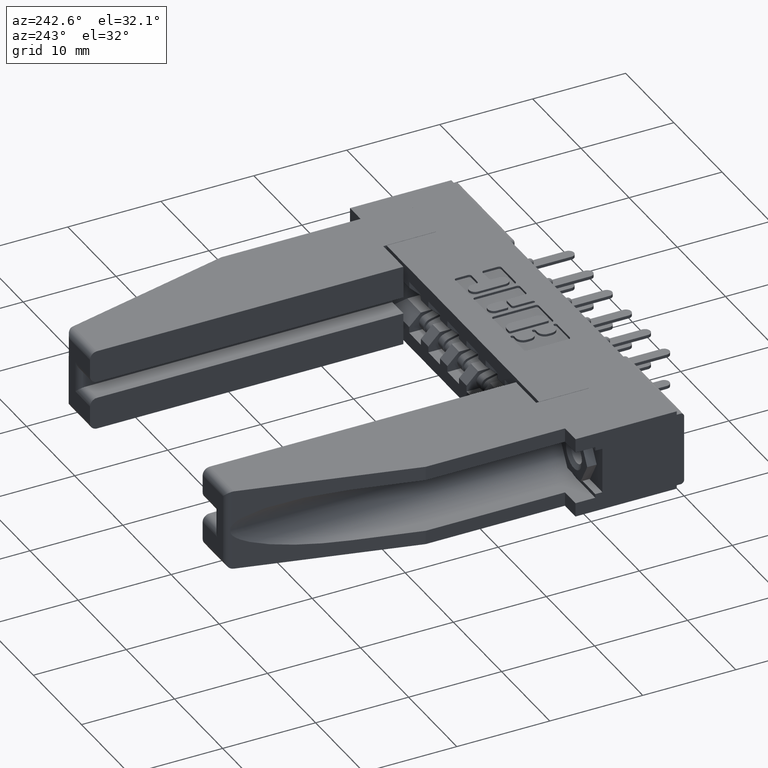
[diagram: clean part render]
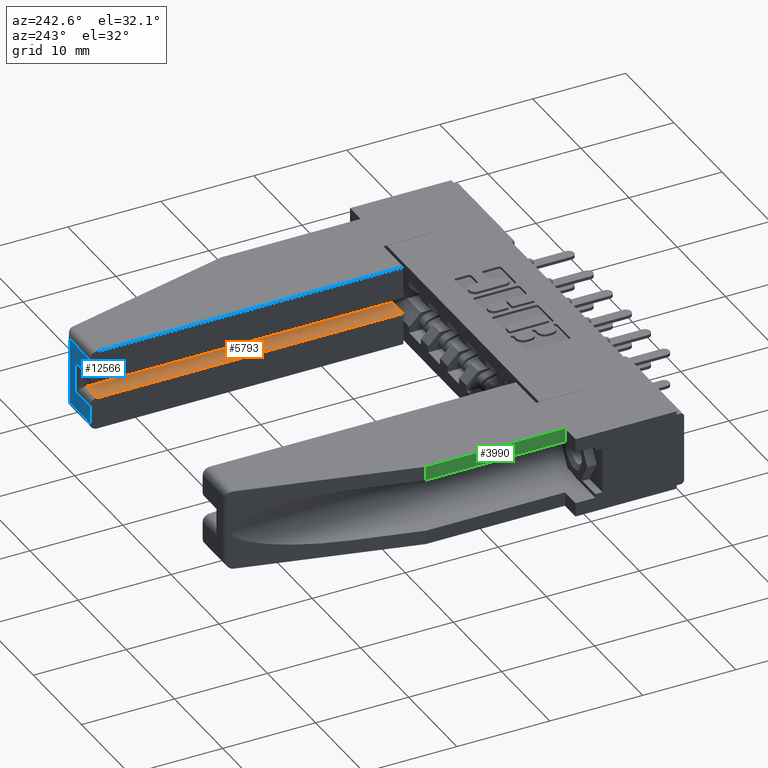
[diagram: same view with three faces highlighted in distinct colors, each labeled with its STEP entity id]
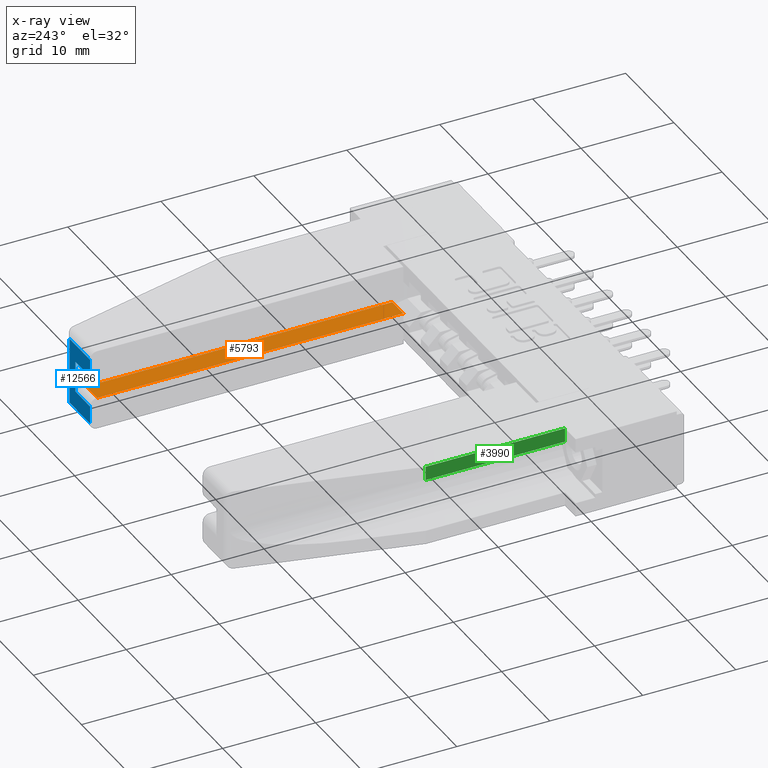
[diagram: x-ray of the same camera — body ghosted, the three highlighted faces saturated]
A machine part, auxiliary view with three faces highlighted in distinct colors.
The next image is the same camera in x-ray (body ghosted, the three faces saturated) — at least one of them is partly hidden behind the body in this view.
Their STEP definitions:

[orange] entity #5793 — the highlighted planar face has unit normal (0, -0, -1).
#22 = VERTEX_POINT ( 'NONE', #10563 ) ;
#886 = EDGE_CURVE ( 'NONE', #2436, #3815, #12402, .T. ) ;
#893 = DIRECTION ( 'NONE',  ( 1.000000000000000000, 0.0000000000000000000, 3.278893948309973300E-033 ) ) ;
#1515 = VECTOR ( 'NONE', #10937, 39.37007874015748100 ) ;
#2048 = DIRECTION ( 'NONE',  ( -5.146661630867112300E-017, -1.000000000000000000, -6.433327038583891200E-017 ) ) ;
#2374 = VECTOR ( 'NONE', #2048, 39.37007874015748100 ) ;
#2436 = VERTEX_POINT ( 'NONE', #3096 ) ;
#2533 = VERTEX_POINT ( 'NONE', #7404 ) ;
#2576 = ORIENTED_EDGE ( 'NONE', *, *, #886, .F. ) ;
#2680 = LINE ( 'NONE', #12197, #2374 ) ;
#3096 = CARTESIAN_POINT ( 'NONE',  ( 0.3710000000000000000, 0.2230000000000000300, -0.1360000000000000100 ) ) ;
#3815 = VERTEX_POINT ( 'NONE', #8954 ) ;
#4304 = ORIENTED_EDGE ( 'NONE', *, *, #10531, .T. ) ;
#5443 = CARTESIAN_POINT ( 'NONE',  ( 0.3710000000000000000, 0.2230000000000000300, -0.1360000000000001200 ) ) ;
#5793 = ADVANCED_FACE ( 'NONE', ( #12257 ), #8504, .F. ) ;
#5968 = VECTOR ( 'NONE', #893, 39.37007874015748100 ) ;
#6207 = VECTOR ( 'NONE', #7867, 39.37007874015748100 ) ;
#6306 = AXIS2_PLACEMENT_3D ( 'NONE', #5443, #7546, #10567 ) ;
#7108 = ORIENTED_EDGE ( 'NONE', *, *, #8427, .T. ) ;
#7404 = CARTESIAN_POINT ( 'NONE',  ( 0.3710000000000001100, 1.519999999999999600, -0.1360000000000000400 ) ) ;
#7546 = DIRECTION ( 'NONE',  ( -3.278893948309973300E-033, -6.433327038583891200E-017, 1.000000000000000000 ) ) ;
#7867 = DIRECTION ( 'NONE',  ( -5.146661630867112300E-017, -1.000000000000000000, -6.433327038583891200E-017 ) ) ;
#8184 = CARTESIAN_POINT ( 'NONE',  ( 0.4610000000000000800, 1.520000000000000200, -0.1360000000000000400 ) ) ;
#8427 = EDGE_CURVE ( 'NONE', #2533, #22, #11408, .T. ) ;
#8504 = PLANE ( 'NONE',  #6306 ) ;
#8954 = CARTESIAN_POINT ( 'NONE',  ( 0.4610000000000000200, 0.2230000000000000300, -0.1360000000000001200 ) ) ;
#9915 = CARTESIAN_POINT ( 'NONE',  ( 0.3710000000000000000, 0.2230000000000000300, -0.1360000000000001200 ) ) ;
#10531 = EDGE_CURVE ( 'NONE', #22, #3815, #2680, .T. ) ;
#10563 = CARTESIAN_POINT ( 'NONE',  ( 0.4610000000000000800, 1.519999999999999600, -0.1360000000000000400 ) ) ;
#10567 = DIRECTION ( 'NONE',  ( 0.0000000000000000000, -1.000000000000000000, -6.433327038583891200E-017 ) ) ;
#10937 = DIRECTION ( 'NONE',  ( 1.000000000000000000, -5.096731331463176700E-017, -0.0000000000000000000 ) ) ;
#11312 = LINE ( 'NONE', #11836, #6207 ) ;
#11408 = LINE ( 'NONE', #8184, #5968 ) ;
#11503 = EDGE_LOOP ( 'NONE', ( #13080, #7108, #4304, #2576 ) ) ;
#11836 = CARTESIAN_POINT ( 'NONE',  ( 0.3710000000000000000, 0.2230000000000000300, -0.1360000000000001200 ) ) ;
#12197 = CARTESIAN_POINT ( 'NONE',  ( 0.4610000000000000200, 0.2230000000000000300, -0.1360000000000001200 ) ) ;
#12257 = FACE_OUTER_BOUND ( 'NONE', #11503, .T. ) ;
#12402 = LINE ( 'NONE', #9915, #1515 ) ;
#13080 = ORIENTED_EDGE ( 'NONE', *, *, #13217, .F. ) ;
#13217 = EDGE_CURVE ( 'NONE', #2533, #2436, #11312, .T. ) ;

[blue] entity #12566 — the highlighted planar face has unit normal (-0, 1, -0).
#231 = DIRECTION ( 'NONE',  ( 0.0000000000000000000, 0.0000000000000000000, 1.000000000000000000 ) ) ;
#394 = EDGE_CURVE ( 'NONE', #7884, #9845, #2155, .T. ) ;
#426 = FACE_OUTER_BOUND ( 'NONE', #9268, .T. ) ;
#656 = EDGE_CURVE ( 'NONE', #6458, #13224, #8568, .T. ) ;
#671 = ORIENTED_EDGE ( 'NONE', *, *, #9357, .T. ) ;
#908 = EDGE_CURVE ( 'NONE', #6297, #11340, #2952, .T. ) ;
#962 = EDGE_CURVE ( 'NONE', #12849, #9000, #4888, .T. ) ;
#1034 = CARTESIAN_POINT ( 'NONE',  ( 0.2710000000000000200, 1.550000000000000000, -0.3130000000000000000 ) ) ;
#1232 = VECTOR ( 'NONE', #9261, 39.37007874015748100 ) ;
#1282 = CARTESIAN_POINT ( 'NONE',  ( 0.4610000000000000800, 1.550000000000000000, -0.2369999999999999900 ) ) ;
#1490 = VECTOR ( 'NONE', #5749, 39.37007874015748100 ) ;
#1596 = AXIS2_PLACEMENT_3D ( 'NONE', #5087, #5909, #5948 ) ;
#1907 = DIRECTION ( 'NONE',  ( 0.0000000000000000000, 0.0000000000000000000, 1.000000000000000000 ) ) ;
#1987 = ORIENTED_EDGE ( 'NONE', *, *, #908, .F. ) ;
#1997 = ORIENTED_EDGE ( 'NONE', *, *, #5566, .T. ) ;
#2116 = EDGE_CURVE ( 'NONE', #9845, #11340, #7112, .T. ) ;
#2155 = LINE ( 'NONE', #13221, #12713 ) ;
#2952 = LINE ( 'NONE', #3913, #7769 ) ;
#3033 = DIRECTION ( 'NONE',  ( 0.0000000000000000000, -0.0000000000000000000, -1.000000000000000000 ) ) ;
#3154 = ORIENTED_EDGE ( 'NONE', *, *, #962, .F. ) ;
#3659 = LINE ( 'NONE', #1034, #7993 ) ;
#3698 = CARTESIAN_POINT ( 'NONE',  ( 0.2944991909279191500, 1.550000000000000000, -0.02999999999999999900 ) ) ;
#3863 = CARTESIAN_POINT ( 'NONE',  ( 0.3410000000000000800, 1.550000000000000000, -0.2369999999999999900 ) ) ;
#3913 = CARTESIAN_POINT ( 'NONE',  ( 0.4610000000000000800, 1.550000000000000000, -0.3430000000000000300 ) ) ;
#4063 = DIRECTION ( 'NONE',  ( -1.000000000000000000, 0.0000000000000000000, 0.0000000000000000000 ) ) ;
#4524 = ORIENTED_EDGE ( 'NONE', *, *, #2116, .T. ) ;
#4888 = LINE ( 'NONE', #9082, #10023 ) ;
#5087 = CARTESIAN_POINT ( 'NONE',  ( 0.4610000000000000800, 1.550000000000000000, -0.3430000000000000300 ) ) ;
#5122 = CARTESIAN_POINT ( 'NONE',  ( 0.4610000000000000800, 1.550000000000000000, -0.3130000000000000000 ) ) ;
#5566 = EDGE_CURVE ( 'NONE', #13224, #9000, #9238, .T. ) ;
#5749 = DIRECTION ( 'NONE',  ( 1.000000000000000000, 0.0000000000000000000, 5.246230317295956000E-033 ) ) ;
#5909 = DIRECTION ( 'NONE',  ( 0.0000000000000000000, 1.000000000000000000, -0.0000000000000000000 ) ) ;
#5948 = DIRECTION ( 'NONE',  ( 0.0000000000000000000, 0.0000000000000000000, 1.000000000000000000 ) ) ;
#6297 = VERTEX_POINT ( 'NONE', #5122 ) ;
#6458 = VERTEX_POINT ( 'NONE', #12884 ) ;
#7112 = LINE ( 'NONE', #8842, #1490 ) ;
#7769 = VECTOR ( 'NONE', #10175, 39.37007874015748100 ) ;
#7833 = ORIENTED_EDGE ( 'NONE', *, *, #394, .T. ) ;
#7836 = DIRECTION ( 'NONE',  ( -1.000000000000000000, -0.0000000000000000000, -3.278893948309973300E-033 ) ) ;
#7884 = VERTEX_POINT ( 'NONE', #8243 ) ;
#7993 = VECTOR ( 'NONE', #4063, 39.37007874015748100 ) ;
#8243 = CARTESIAN_POINT ( 'NONE',  ( 0.3410000000000000800, 1.550000000000000000, -0.1060000000000000200 ) ) ;
#8434 = CARTESIAN_POINT ( 'NONE',  ( 0.2944991909279191500, 1.550000000000000000, -0.3430000000000000300 ) ) ;
#8568 = LINE ( 'NONE', #8434, #9219 ) ;
#8784 = CARTESIAN_POINT ( 'NONE',  ( 0.3710000000000001100, 1.550000000000000000, -0.1060000000000000200 ) ) ;
#8842 = CARTESIAN_POINT ( 'NONE',  ( 0.4610000000000000800, 1.550000000000000000, -0.2369999999999999900 ) ) ;
#8990 = ORIENTED_EDGE ( 'NONE', *, *, #10429, .T. ) ;
#9000 = VERTEX_POINT ( 'NONE', #11381 ) ;
#9050 = PLANE ( 'NONE',  #1596 ) ;
#9082 = CARTESIAN_POINT ( 'NONE',  ( 0.4610000000000000800, 1.550000000000000000, -0.3430000000000000300 ) ) ;
#9188 = ORIENTED_EDGE ( 'NONE', *, *, #656, .T. ) ;
#9219 = VECTOR ( 'NONE', #231, 39.37007874015748100 ) ;
#9238 = LINE ( 'NONE', #12365, #1232 ) ;
#9261 = DIRECTION ( 'NONE',  ( 1.000000000000000000, -0.0000000000000000000, -0.0000000000000000000 ) ) ;
#9268 = EDGE_LOOP ( 'NONE', ( #9188, #1997, #3154, #671, #7833, #4524, #1987, #8990 ) ) ;
#9357 = EDGE_CURVE ( 'NONE', #12849, #7884, #9618, .T. ) ;
#9618 = LINE ( 'NONE', #8784, #10724 ) ;
#9845 = VERTEX_POINT ( 'NONE', #3863 ) ;
#10023 = VECTOR ( 'NONE', #1907, 39.37007874015748100 ) ;
#10175 = DIRECTION ( 'NONE',  ( 0.0000000000000000000, 0.0000000000000000000, 1.000000000000000000 ) ) ;
#10270 = CARTESIAN_POINT ( 'NONE',  ( 0.4610000000000000800, 1.550000000000000000, -0.1060000000000000400 ) ) ;
#10429 = EDGE_CURVE ( 'NONE', #6297, #6458, #3659, .T. ) ;
#10724 = VECTOR ( 'NONE', #7836, 39.37007874015748100 ) ;
#11340 = VERTEX_POINT ( 'NONE', #1282 ) ;
#11381 = CARTESIAN_POINT ( 'NONE',  ( 0.4610000000000000800, 1.550000000000000000, -0.03000000000000002300 ) ) ;
#12365 = CARTESIAN_POINT ( 'NONE',  ( 0.4610000000000000800, 1.550000000000000000, -0.03000000000000002300 ) ) ;
#12566 = ADVANCED_FACE ( 'NONE', ( #426 ), #9050, .T. ) ;
#12713 = VECTOR ( 'NONE', #3033, 39.37007874015748100 ) ;
#12849 = VERTEX_POINT ( 'NONE', #10270 ) ;
#12884 = CARTESIAN_POINT ( 'NONE',  ( 0.2944991909279191500, 1.550000000000000000, -0.3130000000000000000 ) ) ;
#13221 = CARTESIAN_POINT ( 'NONE',  ( 0.3410000000000000800, 1.550000000000000000, -0.2070000000000000200 ) ) ;
#13224 = VERTEX_POINT ( 'NONE', #3698 ) ;

[green] entity #3990 — the highlighted planar face has unit normal (-1, 0, 0).
#1 = VERTEX_POINT ( 'NONE', #9636 ) ;
#31 = LINE ( 'NONE', #2053, #6753 ) ;
#137 = DIRECTION ( 'NONE',  ( 0.0000000000000000000, 0.0000000000000000000, 1.000000000000000000 ) ) ;
#751 = LINE ( 'NONE', #8231, #12409 ) ;
#2047 = ORIENTED_EDGE ( 'NONE', *, *, #12792, .F. ) ;
#2053 = CARTESIAN_POINT ( 'NONE',  ( 0.08600000000000011800, 0.2099999999999999400, -0.3430000000000000300 ) ) ;
#3190 = CARTESIAN_POINT ( 'NONE',  ( 0.08600000000000011800, 0.2099999999999999400, 0.0000000000000000000 ) ) ;
#3202 = EDGE_CURVE ( 'NONE', #12147, #9714, #31, .T. ) ;
#3239 = PLANE ( 'NONE',  #3516 ) ;
#3516 = AXIS2_PLACEMENT_3D ( 'NONE', #9431, #6432, #4359 ) ;
#3582 = ORIENTED_EDGE ( 'NONE', *, *, #5926, .F. ) ;
#3990 = ADVANCED_FACE ( 'NONE', ( #7521 ), #3239, .T. ) ;
#4314 = DIRECTION ( 'NONE',  ( 2.893906772949431400E-017, 1.000000000000000000, 1.593893832970429200E-033 ) ) ;
#4329 = EDGE_CURVE ( 'NONE', #12147, #4420, #11821, .T. ) ;
#4359 = DIRECTION ( 'NONE',  ( -2.893906772949431400E-017, -1.000000000000000000, 0.0000000000000000000 ) ) ;
#4420 = VERTEX_POINT ( 'NONE', #7494 ) ;
#5295 = CARTESIAN_POINT ( 'NONE',  ( 0.08600000000000013200, 0.8000000000000000400, -0.05900000000000003900 ) ) ;
#5727 = ORIENTED_EDGE ( 'NONE', *, *, #4329, .F. ) ;
#5926 = EDGE_CURVE ( 'NONE', #1, #9714, #7323, .T. ) ;
#6432 = DIRECTION ( 'NONE',  ( -1.000000000000000000, 2.893906772949431400E-017, 0.0000000000000000000 ) ) ;
#6753 = VECTOR ( 'NONE', #7049, 39.37007874015748100 ) ;
#6855 = EDGE_LOOP ( 'NONE', ( #5727, #8199, #3582, #2047 ) ) ;
#6885 = DIRECTION ( 'NONE',  ( -2.893906772949430800E-017, -1.000000000000000000, 0.0000000000000000000 ) ) ;
#7049 = DIRECTION ( 'NONE',  ( 0.0000000000000000000, 0.0000000000000000000, 1.000000000000000000 ) ) ;
#7226 = CARTESIAN_POINT ( 'NONE',  ( 0.08600000000000011800, 0.2099999999999999400, -0.05900000000000003900 ) ) ;
#7323 = LINE ( 'NONE', #10057, #11462 ) ;
#7494 = CARTESIAN_POINT ( 'NONE',  ( 0.08600000000000016000, 0.8000000000000000400, -0.05900000000000001800 ) ) ;
#7521 = FACE_OUTER_BOUND ( 'NONE', #6855, .T. ) ;
#8199 = ORIENTED_EDGE ( 'NONE', *, *, #3202, .T. ) ;
#8231 = CARTESIAN_POINT ( 'NONE',  ( 0.08600000000000013200, 0.8000000000000000400, -0.3430000000000000300 ) ) ;
#9431 = CARTESIAN_POINT ( 'NONE',  ( 0.08600000000000013200, 0.8000000000000000400, -0.3430000000000000300 ) ) ;
#9636 = CARTESIAN_POINT ( 'NONE',  ( 0.08600000000000013200, 0.8000000000000000400, 0.0000000000000000000 ) ) ;
#9714 = VERTEX_POINT ( 'NONE', #3190 ) ;
#9749 = VECTOR ( 'NONE', #4314, 39.37007874015748100 ) ;
#10057 = CARTESIAN_POINT ( 'NONE',  ( 0.08600000000000013200, 0.8000000000000000400, 0.0000000000000000000 ) ) ;
#11462 = VECTOR ( 'NONE', #6885, 39.37007874015748100 ) ;
#11821 = LINE ( 'NONE', #5295, #9749 ) ;
#12147 = VERTEX_POINT ( 'NONE', #7226 ) ;
#12409 = VECTOR ( 'NONE', #137, 39.37007874015748100 ) ;
#12792 = EDGE_CURVE ( 'NONE', #4420, #1, #751, .T. ) ;